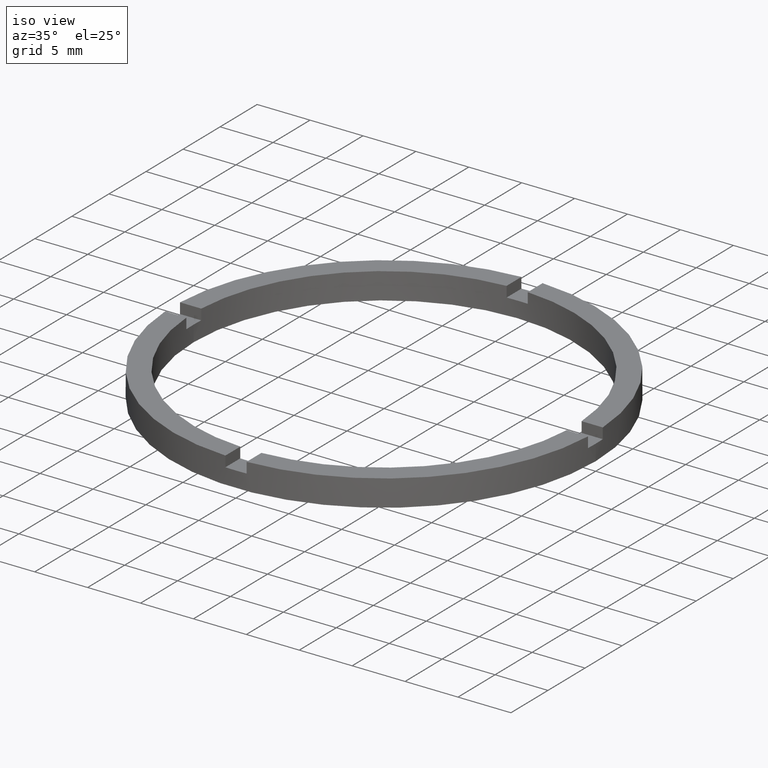
[diagram: clean part render]
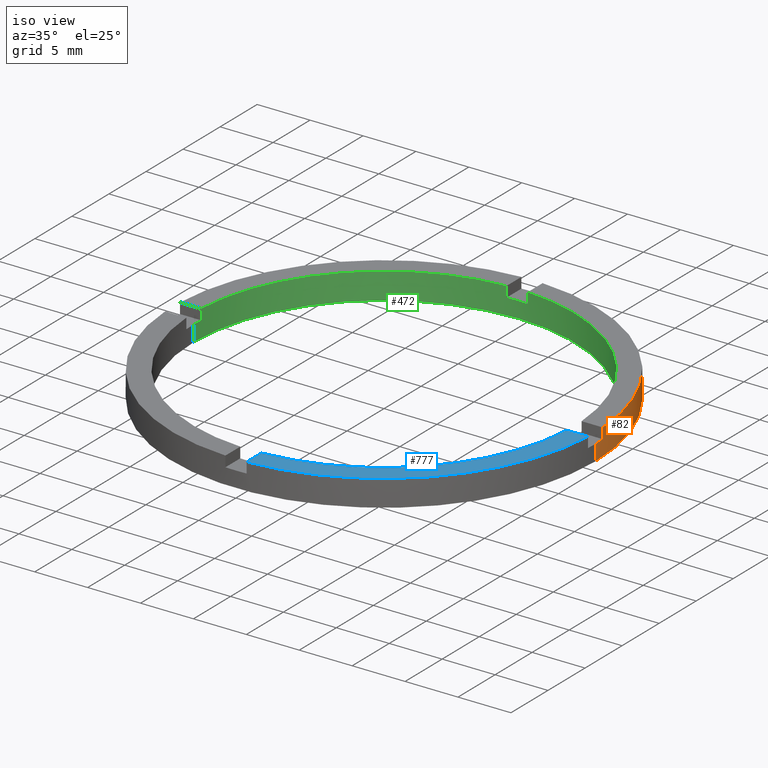
[diagram: same view with three faces highlighted in distinct colors, each labeled with its STEP entity id]
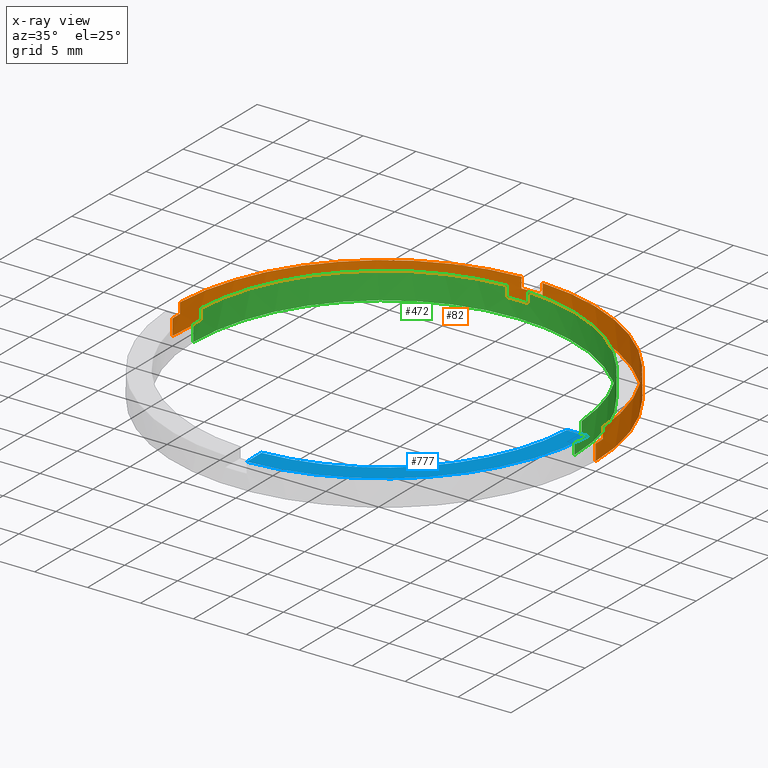
[diagram: x-ray of the same camera — body ghosted, the three highlighted faces saturated]
A machine part, iso view with three faces highlighted in distinct colors.
The next image is the same camera in x-ray (body ghosted, the three faces saturated) — at least one of them is partly hidden behind the body in this view.
Their STEP definitions:

[orange] entity #82 — the highlighted cylindrical surface (partial cylindrical patch) has radius 20 mm, axis along (-0, -0, -1).
#18 = VERTEX_POINT ( 'NONE', #668 ) ;
#19 = ORIENTED_EDGE ( 'NONE', *, *, #298, .F. ) ;
#30 = VERTEX_POINT ( 'NONE', #351 ) ;
#39 = CARTESIAN_POINT ( 'NONE',  ( 0.000000000000000000, 0.000000000000000000, 2.500000000000000000 ) ) ;
#44 = ORIENTED_EDGE ( 'NONE', *, *, #510, .F. ) ;
#50 = VERTEX_POINT ( 'NONE', #316 ) ;
#52 = CARTESIAN_POINT ( 'NONE',  ( 19.97498435543818829, 0.9999999999998430145, 1.500000000000000000 ) ) ;
#66 = CARTESIAN_POINT ( 'NONE',  ( 20.00000000000000000, 2.449293598294706513E-15, 1.500000000000000000 ) ) ;
#70 = CARTESIAN_POINT ( 'NONE',  ( 20.00000000000000000, 2.449293598294706513E-15, 2.500000000000000000 ) ) ;
#74 = DIRECTION ( 'NONE',  ( 0.000000000000000000, 0.000000000000000000, 1.000000000000000000 ) ) ;
#82 = ADVANCED_FACE ( 'NONE', ( #350 ), #356, .T. ) ;
#84 = AXIS2_PLACEMENT_3D ( 'NONE', #224, #247, #402 ) ;
#94 = AXIS2_PLACEMENT_3D ( 'NONE', #231, #589, #187 ) ;
#96 = CARTESIAN_POINT ( 'NONE',  ( -1.000000000000026867, 19.97498435543817763, 2.500000000000000000 ) ) ;
#107 = CARTESIAN_POINT ( 'NONE',  ( 19.97498435543818829, 0.9999999999998430145, 2.500000000000000000 ) ) ;
#124 = ORIENTED_EDGE ( 'NONE', *, *, #315, .F. ) ;
#131 = AXIS2_PLACEMENT_3D ( 'NONE', #780, #722, #194 ) ;
#134 = VECTOR ( 'NONE', #276, 1000.000000000000000 ) ;
#137 = LINE ( 'NONE', #773, #685 ) ;
#150 = CARTESIAN_POINT ( 'NONE',  ( 19.97498435543818829, 0.9999999999998430145, 2.500000000000000000 ) ) ;
#153 = LINE ( 'NONE', #672, #670 ) ;
#158 = LINE ( 'NONE', #548, #432 ) ;
#171 = DIRECTION ( 'NONE',  ( 0.000000000000000000, 0.000000000000000000, 1.000000000000000000 ) ) ;
#180 = DIRECTION ( 'NONE',  ( -0.000000000000000000, -0.000000000000000000, -1.000000000000000000 ) ) ;
#181 = CARTESIAN_POINT ( 'NONE',  ( -19.97498435543818118, 0.9999999999999742428, 2.500000000000000000 ) ) ;
#187 = DIRECTION ( 'NONE',  ( 1.000000000000000000, 0.000000000000000000, 0.000000000000000000 ) ) ;
#194 = DIRECTION ( 'NONE',  ( 1.000000000000000000, 0.000000000000000000, 0.000000000000000000 ) ) ;
#213 = ORIENTED_EDGE ( 'NONE', *, *, #246, .F. ) ;
#219 = CARTESIAN_POINT ( 'NONE',  ( -1.000000000000026867, 19.97498435543817763, 2.500000000000000000 ) ) ;
#224 = CARTESIAN_POINT ( 'NONE',  ( 0.000000000000000000, 0.000000000000000000, 1.500000000000000000 ) ) ;
#227 = VERTEX_POINT ( 'NONE', #181 ) ;
#231 = CARTESIAN_POINT ( 'NONE',  ( 0.000000000000000000, 0.000000000000000000, 1.500000000000000000 ) ) ;
#245 = DIRECTION ( 'NONE',  ( -0.000000000000000000, -0.000000000000000000, -1.000000000000000000 ) ) ;
#246 = EDGE_CURVE ( 'NONE', #742, #741, #624, .T. ) ;
#247 = DIRECTION ( 'NONE',  ( 0.000000000000000000, 0.000000000000000000, 1.000000000000000000 ) ) ;
#256 = EDGE_CURVE ( 'NONE', #755, #227, #372, .T. ) ;
#267 = AXIS2_PLACEMENT_3D ( 'NONE', #39, #557, #466 ) ;
#269 = ORIENTED_EDGE ( 'NONE', *, *, #454, .T. ) ;
#276 = DIRECTION ( 'NONE',  ( -0.000000000000000000, -0.000000000000000000, -1.000000000000000000 ) ) ;
#286 = DIRECTION ( 'NONE',  ( 1.000000000000000000, 0.000000000000000000, 0.000000000000000000 ) ) ;
#297 = VERTEX_POINT ( 'NONE', #107 ) ;
#298 = EDGE_CURVE ( 'NONE', #504, #50, #370, .T. ) ;
#308 = VERTEX_POINT ( 'NONE', #496 ) ;
#315 = EDGE_CURVE ( 'NONE', #18, #730, #380, .T. ) ;
#316 = CARTESIAN_POINT ( 'NONE',  ( -1.000000000000026867, 19.97498435543817763, 1.500000000000000000 ) ) ;
#336 = DIRECTION ( 'NONE',  ( -0.000000000000000000, -0.000000000000000000, -1.000000000000000000 ) ) ;
#350 = FACE_OUTER_BOUND ( 'NONE', #543, .T. ) ;
#351 = CARTESIAN_POINT ( 'NONE',  ( -20.00000000000000000, 0.000000000000000000, 0.000000000000000000 ) ) ;
#356 = CYLINDRICAL_SURFACE ( 'NONE', #580, 20.00000000000000000 ) ;
#369 = DIRECTION ( 'NONE',  ( -1.000000000000000000, 0.000000000000000000, 0.000000000000000000 ) ) ;
#370 = CIRCLE ( 'NONE', #94, 20.00000000000000000 ) ;
#372 = CIRCLE ( 'NONE', #390, 20.00000000000000000 ) ;
#380 = CIRCLE ( 'NONE', #84, 20.00000000000000000 ) ;
#386 = ORIENTED_EDGE ( 'NONE', *, *, #447, .F. ) ;
#390 = AXIS2_PLACEMENT_3D ( 'NONE', #533, #425, #529 ) ;
#402 = DIRECTION ( 'NONE',  ( 1.000000000000000000, 0.000000000000000000, 0.000000000000000000 ) ) ;
#408 = CIRCLE ( 'NONE', #267, 20.00000000000000000 ) ;
#411 = CARTESIAN_POINT ( 'NONE',  ( 0.000000000000000000, 0.000000000000000000, 1.500000000000000000 ) ) ;
#413 = LINE ( 'NONE', #219, #134 ) ;
#416 = VECTOR ( 'NONE', #245, 1000.000000000000000 ) ;
#425 = DIRECTION ( 'NONE',  ( 0.000000000000000000, 0.000000000000000000, 1.000000000000000000 ) ) ;
#432 = VECTOR ( 'NONE', #171, 1000.000000000000000 ) ;
#440 = LINE ( 'NONE', #150, #416 ) ;
#444 = EDGE_CURVE ( 'NONE', #457, #30, #664, .T. ) ;
#447 = EDGE_CURVE ( 'NONE', #297, #308, #408, .T. ) ;
#448 = LINE ( 'NONE', #70, #696 ) ;
#454 = EDGE_CURVE ( 'NONE', #504, #308, #153, .T. ) ;
#457 = VERTEX_POINT ( 'NONE', #513 ) ;
#466 = DIRECTION ( 'NONE',  ( 1.000000000000000000, 0.000000000000000000, 0.000000000000000000 ) ) ;
#477 = ORIENTED_EDGE ( 'NONE', *, *, #760, .T. ) ;
#492 = EDGE_CURVE ( 'NONE', #297, #741, #440, .T. ) ;
#496 = CARTESIAN_POINT ( 'NONE',  ( 0.9999999999999731326, 19.97498435543818118, 2.500000000000000000 ) ) ;
#504 = VERTEX_POINT ( 'NONE', #585 ) ;
#510 = EDGE_CURVE ( 'NONE', #730, #30, #137, .T. ) ;
#513 = CARTESIAN_POINT ( 'NONE',  ( 20.00000000000000000, 2.449293598294706513E-15, 0.000000000000000000 ) ) ;
#516 = EDGE_CURVE ( 'NONE', #755, #50, #413, .T. ) ;
#529 = DIRECTION ( 'NONE',  ( 1.000000000000000000, 0.000000000000000000, 0.000000000000000000 ) ) ;
#533 = CARTESIAN_POINT ( 'NONE',  ( 0.000000000000000000, 0.000000000000000000, 2.500000000000000000 ) ) ;
#543 = EDGE_LOOP ( 'NONE', ( #213, #477, #717, #44, #124, #558, #641, #732, #19, #269, #386, #544 ) ) ;
#544 = ORIENTED_EDGE ( 'NONE', *, *, #492, .T. ) ;
#548 = CARTESIAN_POINT ( 'NONE',  ( -19.97498435543818118, 0.9999999999999742428, 2.500000000000000000 ) ) ;
#557 = DIRECTION ( 'NONE',  ( 0.000000000000000000, 0.000000000000000000, 1.000000000000000000 ) ) ;
#558 = ORIENTED_EDGE ( 'NONE', *, *, #686, .T. ) ;
#580 = AXIS2_PLACEMENT_3D ( 'NONE', #676, #749, #369 ) ;
#585 = CARTESIAN_POINT ( 'NONE',  ( 0.9999999999999731326, 19.97498435543818118, 1.500000000000000000 ) ) ;
#586 = CARTESIAN_POINT ( 'NONE',  ( -20.00000000000000000, 0.000000000000000000, 1.500000000000000000 ) ) ;
#587 = DIRECTION ( 'NONE',  ( 0.000000000000000000, 0.000000000000000000, 1.000000000000000000 ) ) ;
#589 = DIRECTION ( 'NONE',  ( 0.000000000000000000, -0.000000000000000000, 1.000000000000000000 ) ) ;
#624 = CIRCLE ( 'NONE', #783, 20.00000000000000000 ) ;
#641 = ORIENTED_EDGE ( 'NONE', *, *, #256, .F. ) ;
#664 = CIRCLE ( 'NONE', #131, 20.00000000000000000 ) ;
#668 = CARTESIAN_POINT ( 'NONE',  ( -19.97498435543818118, 0.9999999999999742428, 1.500000000000000000 ) ) ;
#670 = VECTOR ( 'NONE', #74, 1000.000000000000000 ) ;
#672 = CARTESIAN_POINT ( 'NONE',  ( 0.9999999999999731326, 19.97498435543818118, 2.500000000000000000 ) ) ;
#676 = CARTESIAN_POINT ( 'NONE',  ( 0.000000000000000000, 0.000000000000000000, 2.500000000000000000 ) ) ;
#685 = VECTOR ( 'NONE', #336, 1000.000000000000000 ) ;
#686 = EDGE_CURVE ( 'NONE', #18, #227, #158, .T. ) ;
#696 = VECTOR ( 'NONE', #180, 1000.000000000000000 ) ;
#717 = ORIENTED_EDGE ( 'NONE', *, *, #444, .T. ) ;
#722 = DIRECTION ( 'NONE',  ( 0.000000000000000000, 0.000000000000000000, 1.000000000000000000 ) ) ;
#730 = VERTEX_POINT ( 'NONE', #586 ) ;
#732 = ORIENTED_EDGE ( 'NONE', *, *, #516, .T. ) ;
#741 = VERTEX_POINT ( 'NONE', #52 ) ;
#742 = VERTEX_POINT ( 'NONE', #66 ) ;
#749 = DIRECTION ( 'NONE',  ( -0.000000000000000000, -0.000000000000000000, -1.000000000000000000 ) ) ;
#755 = VERTEX_POINT ( 'NONE', #96 ) ;
#760 = EDGE_CURVE ( 'NONE', #742, #457, #448, .T. ) ;
#773 = CARTESIAN_POINT ( 'NONE',  ( -20.00000000000000000, 0.000000000000000000, 2.500000000000000000 ) ) ;
#780 = CARTESIAN_POINT ( 'NONE',  ( 0.000000000000000000, 0.000000000000000000, 0.000000000000000000 ) ) ;
#783 = AXIS2_PLACEMENT_3D ( 'NONE', #411, #587, #286 ) ;

[blue] entity #777 — the highlighted planar face has unit normal (0, 0, 1).
#9 = DIRECTION ( 'NONE',  ( -1.301042606982605321E-16, 1.000000000000000000, -0.000000000000000000 ) ) ;
#37 = FACE_OUTER_BOUND ( 'NONE', #307, .T. ) ;
#56 = CARTESIAN_POINT ( 'NONE',  ( 0.9999999999998382405, -10.00000000000018119, 2.500000000000000000 ) ) ;
#80 = CARTESIAN_POINT ( 'NONE',  ( 0.000000000000000000, 0.000000000000000000, 2.500000000000000000 ) ) ;
#100 = CARTESIAN_POINT ( 'NONE',  ( 0.9999999999998395728, -19.97498435543818829, 2.500000000000000000 ) ) ;
#110 = CARTESIAN_POINT ( 'NONE',  ( 0.9999999999998393507, -17.97220075561143560, 2.500000000000000000 ) ) ;
#111 = DIRECTION ( 'NONE',  ( 1.000000000000000000, 6.505213034913025371E-17, 0.000000000000000000 ) ) ;
#116 = LINE ( 'NONE', #56, #358 ) ;
#175 = VERTEX_POINT ( 'NONE', #110 ) ;
#196 = VERTEX_POINT ( 'NONE', #100 ) ;
#225 = EDGE_CURVE ( 'NONE', #196, #175, #116, .T. ) ;
#242 = DIRECTION ( 'NONE',  ( 0.000000000000000000, 0.000000000000000000, 1.000000000000000000 ) ) ;
#264 = DIRECTION ( 'NONE',  ( 0.000000000000000000, 0.000000000000000000, 1.000000000000000000 ) ) ;
#307 = EDGE_LOOP ( 'NONE', ( #546, #555, #611, #363 ) ) ;
#319 = PLANE ( 'NONE',  #559 ) ;
#327 = EDGE_CURVE ( 'NONE', #175, #431, #632, .T. ) ;
#342 = AXIS2_PLACEMENT_3D ( 'NONE', #729, #242, #737 ) ;
#358 = VECTOR ( 'NONE', #9, 1000.000000000000000 ) ;
#363 = ORIENTED_EDGE ( 'NONE', *, *, #572, .T. ) ;
#366 = EDGE_CURVE ( 'NONE', #431, #707, #661, .T. ) ;
#407 = CARTESIAN_POINT ( 'NONE',  ( 9.999999999999994671, -1.000000000000157652, 2.500000000000000000 ) ) ;
#431 = VERTEX_POINT ( 'NONE', #647 ) ;
#534 = CARTESIAN_POINT ( 'NONE',  ( 19.97498435543817408, -1.000000000000156986, 2.500000000000000000 ) ) ;
#546 = ORIENTED_EDGE ( 'NONE', *, *, #366, .F. ) ;
#555 = ORIENTED_EDGE ( 'NONE', *, *, #327, .F. ) ;
#556 = DIRECTION ( 'NONE',  ( 0.000000000000000000, 0.000000000000000000, 1.000000000000000000 ) ) ;
#559 = AXIS2_PLACEMENT_3D ( 'NONE', #716, #556, #601 ) ;
#572 = EDGE_CURVE ( 'NONE', #196, #707, #667, .T. ) ;
#601 = DIRECTION ( 'NONE',  ( 1.000000000000000000, 0.000000000000000000, -0.000000000000000000 ) ) ;
#611 = ORIENTED_EDGE ( 'NONE', *, *, #225, .F. ) ;
#632 = CIRCLE ( 'NONE', #342, 18.00000000000000000 ) ;
#647 = CARTESIAN_POINT ( 'NONE',  ( 17.97220075561141783, -1.000000000000157208, 2.500000000000000000 ) ) ;
#661 = LINE ( 'NONE', #407, #666 ) ;
#666 = VECTOR ( 'NONE', #111, 1000.000000000000000 ) ;
#667 = CIRCLE ( 'NONE', #698, 20.00000000000000000 ) ;
#698 = AXIS2_PLACEMENT_3D ( 'NONE', #80, #264, #702 ) ;
#702 = DIRECTION ( 'NONE',  ( 1.000000000000000000, 0.000000000000000000, 0.000000000000000000 ) ) ;
#707 = VERTEX_POINT ( 'NONE', #534 ) ;
#716 = CARTESIAN_POINT ( 'NONE',  ( 0.000000000000000000, 0.000000000000000000, 2.500000000000000000 ) ) ;
#729 = CARTESIAN_POINT ( 'NONE',  ( 0.000000000000000000, 0.000000000000000000, 2.500000000000000000 ) ) ;
#737 = DIRECTION ( 'NONE',  ( 1.000000000000000000, 0.000000000000000000, 0.000000000000000000 ) ) ;
#777 = ADVANCED_FACE ( 'NONE', ( #37 ), #319, .T. ) ;

[green] entity #472 — the highlighted cylindrical surface (partial cylindrical patch) has radius 18 mm, axis along (-0, -0, -1).
#1 = CARTESIAN_POINT ( 'NONE',  ( 0.000000000000000000, 0.000000000000000000, 2.500000000000000000 ) ) ;
#4 = CARTESIAN_POINT ( 'NONE',  ( -1.000000000000026867, 17.97220075561142494, 2.500000000000000000 ) ) ;
#10 = EDGE_CURVE ( 'NONE', #456, #740, #348, .T. ) ;
#14 = ORIENTED_EDGE ( 'NONE', *, *, #460, .F. ) ;
#20 = ORIENTED_EDGE ( 'NONE', *, *, #10, .T. ) ;
#26 = DIRECTION ( 'NONE',  ( -0.000000000000000000, -0.000000000000000000, -1.000000000000000000 ) ) ;
#28 = VERTEX_POINT ( 'NONE', #368 ) ;
#34 = ORIENTED_EDGE ( 'NONE', *, *, #91, .F. ) ;
#38 = ORIENTED_EDGE ( 'NONE', *, *, #106, .T. ) ;
#53 = EDGE_CURVE ( 'NONE', #157, #456, #373, .T. ) ;
#86 = VECTOR ( 'NONE', #323, 1000.000000000000000 ) ;
#91 = EDGE_CURVE ( 'NONE', #223, #740, #622, .T. ) ;
#103 = CARTESIAN_POINT ( 'NONE',  ( 0.000000000000000000, 0.000000000000000000, 2.500000000000000000 ) ) ;
#104 = AXIS2_PLACEMENT_3D ( 'NONE', #439, #489, #598 ) ;
#106 = EDGE_CURVE ( 'NONE', #704, #490, #379, .T. ) ;
#112 = CIRCLE ( 'NONE', #204, 18.00000000000000000 ) ;
#126 = CARTESIAN_POINT ( 'NONE',  ( 0.000000000000000000, 0.000000000000000000, 0.000000000000000000 ) ) ;
#135 = VECTOR ( 'NONE', #333, 1000.000000000000000 ) ;
#140 = VECTOR ( 'NONE', #222, 1000.000000000000000 ) ;
#147 = LINE ( 'NONE', #663, #161 ) ;
#154 = FACE_OUTER_BOUND ( 'NONE', #553, .T. ) ;
#157 = VERTEX_POINT ( 'NONE', #229 ) ;
#161 = VECTOR ( 'NONE', #268, 1000.000000000000000 ) ;
#167 = VECTOR ( 'NONE', #648, 1000.000000000000000 ) ;
#172 = VERTEX_POINT ( 'NONE', #481 ) ;
#173 = CIRCLE ( 'NONE', #618, 18.00000000000000000 ) ;
#188 = VERTEX_POINT ( 'NONE', #476 ) ;
#192 = CARTESIAN_POINT ( 'NONE',  ( -18.00000000000000000, 0.000000000000000000, 0.000000000000000000 ) ) ;
#198 = ORIENTED_EDGE ( 'NONE', *, *, #592, .F. ) ;
#202 = ORIENTED_EDGE ( 'NONE', *, *, #747, .T. ) ;
#204 = AXIS2_PLACEMENT_3D ( 'NONE', #593, #657, #733 ) ;
#211 = DIRECTION ( 'NONE',  ( -1.000000000000000000, 0.000000000000000000, 0.000000000000000000 ) ) ;
#216 = CARTESIAN_POINT ( 'NONE',  ( 17.97220075561143560, 0.9999999999998427924, 2.500000000000000000 ) ) ;
#222 = DIRECTION ( 'NONE',  ( 0.000000000000000000, 0.000000000000000000, 1.000000000000000000 ) ) ;
#223 = VERTEX_POINT ( 'NONE', #603 ) ;
#229 = CARTESIAN_POINT ( 'NONE',  ( -17.97220075561142849, 0.9999999999999746869, 1.500000000000000000 ) ) ;
#240 = CARTESIAN_POINT ( 'NONE',  ( -18.00000000000000000, 0.000000000000000000, 2.500000000000000000 ) ) ;
#249 = DIRECTION ( 'NONE',  ( 0.000000000000000000, 0.000000000000000000, 1.000000000000000000 ) ) ;
#263 = AXIS2_PLACEMENT_3D ( 'NONE', #103, #731, #501 ) ;
#268 = DIRECTION ( 'NONE',  ( -0.000000000000000000, -0.000000000000000000, -1.000000000000000000 ) ) ;
#304 = ORIENTED_EDGE ( 'NONE', *, *, #352, .F. ) ;
#311 = ORIENTED_EDGE ( 'NONE', *, *, #771, .F. ) ;
#313 = EDGE_CURVE ( 'NONE', #172, #535, #112, .T. ) ;
#323 = DIRECTION ( 'NONE',  ( -0.000000000000000000, -0.000000000000000000, -1.000000000000000000 ) ) ;
#333 = DIRECTION ( 'NONE',  ( -0.000000000000000000, -0.000000000000000000, -1.000000000000000000 ) ) ;
#339 = EDGE_CURVE ( 'NONE', #704, #713, #438, .T. ) ;
#348 = LINE ( 'NONE', #240, #86 ) ;
#352 = EDGE_CURVE ( 'NONE', #172, #223, #436, .T. ) ;
#368 = CARTESIAN_POINT ( 'NONE',  ( -17.97220075561142849, 0.9999999999999746869, 2.500000000000000000 ) ) ;
#373 = CIRCLE ( 'NONE', #104, 18.00000000000000000 ) ;
#379 = CIRCLE ( 'NONE', #769, 18.00000000000000000 ) ;
#406 = VECTOR ( 'NONE', #584, 1000.000000000000000 ) ;
#417 = DIRECTION ( 'NONE',  ( 1.000000000000000000, 0.000000000000000000, 0.000000000000000000 ) ) ;
#429 = CIRCLE ( 'NONE', #263, 18.00000000000000000 ) ;
#436 = LINE ( 'NONE', #634, #406 ) ;
#438 = LINE ( 'NONE', #595, #140 ) ;
#439 = CARTESIAN_POINT ( 'NONE',  ( 0.000000000000000000, 0.000000000000000000, 1.500000000000000000 ) ) ;
#456 = VERTEX_POINT ( 'NONE', #549 ) ;
#460 = EDGE_CURVE ( 'NONE', #727, #490, #147, .T. ) ;
#468 = ORIENTED_EDGE ( 'NONE', *, *, #313, .T. ) ;
#472 = ADVANCED_FACE ( 'NONE', ( #154 ), #675, .F. ) ;
#476 = CARTESIAN_POINT ( 'NONE',  ( 17.97220075561143560, 0.9999999999998427924, 2.500000000000000000 ) ) ;
#481 = CARTESIAN_POINT ( 'NONE',  ( 18.00000000000000000, 2.204364238465235428E-15, 1.500000000000000000 ) ) ;
#485 = CARTESIAN_POINT ( 'NONE',  ( 0.9999999999999731326, 17.97220075561142849, 2.500000000000000000 ) ) ;
#489 = DIRECTION ( 'NONE',  ( 0.000000000000000000, 0.000000000000000000, 1.000000000000000000 ) ) ;
#490 = VERTEX_POINT ( 'NONE', #521 ) ;
#501 = DIRECTION ( 'NONE',  ( 1.000000000000000000, 0.000000000000000000, 0.000000000000000000 ) ) ;
#521 = CARTESIAN_POINT ( 'NONE',  ( -1.000000000000026867, 17.97220075561142494, 1.500000000000000000 ) ) ;
#535 = VERTEX_POINT ( 'NONE', #719 ) ;
#549 = CARTESIAN_POINT ( 'NONE',  ( -18.00000000000000000, 0.000000000000000000, 1.500000000000000000 ) ) ;
#553 = EDGE_LOOP ( 'NONE', ( #304, #468, #198, #571, #574, #38, #14, #202, #311, #577, #20, #34 ) ) ;
#554 = DIRECTION ( 'NONE',  ( 1.000000000000000000, 0.000000000000000000, 0.000000000000000000 ) ) ;
#571 = ORIENTED_EDGE ( 'NONE', *, *, #665, .T. ) ;
#574 = ORIENTED_EDGE ( 'NONE', *, *, #339, .F. ) ;
#577 = ORIENTED_EDGE ( 'NONE', *, *, #53, .T. ) ;
#584 = DIRECTION ( 'NONE',  ( -0.000000000000000000, -0.000000000000000000, -1.000000000000000000 ) ) ;
#592 = EDGE_CURVE ( 'NONE', #188, #535, #656, .T. ) ;
#593 = CARTESIAN_POINT ( 'NONE',  ( 0.000000000000000000, 0.000000000000000000, 1.500000000000000000 ) ) ;
#595 = CARTESIAN_POINT ( 'NONE',  ( 0.9999999999999731326, 17.97220075561142849, 2.500000000000000000 ) ) ;
#598 = DIRECTION ( 'NONE',  ( 1.000000000000000000, 0.000000000000000000, 0.000000000000000000 ) ) ;
#599 = CARTESIAN_POINT ( 'NONE',  ( 0.000000000000000000, 0.000000000000000000, 1.500000000000000000 ) ) ;
#603 = CARTESIAN_POINT ( 'NONE',  ( 18.00000000000000000, 2.204364238465235428E-15, 0.000000000000000000 ) ) ;
#618 = AXIS2_PLACEMENT_3D ( 'NONE', #1, #655, #417 ) ;
#622 = CIRCLE ( 'NONE', #684, 18.00000000000000000 ) ;
#634 = CARTESIAN_POINT ( 'NONE',  ( 18.00000000000000000, 2.204364238465235428E-15, 2.500000000000000000 ) ) ;
#648 = DIRECTION ( 'NONE',  ( 0.000000000000000000, 0.000000000000000000, 1.000000000000000000 ) ) ;
#655 = DIRECTION ( 'NONE',  ( 0.000000000000000000, 0.000000000000000000, 1.000000000000000000 ) ) ;
#656 = LINE ( 'NONE', #216, #135 ) ;
#657 = DIRECTION ( 'NONE',  ( 0.000000000000000000, 0.000000000000000000, 1.000000000000000000 ) ) ;
#663 = CARTESIAN_POINT ( 'NONE',  ( -1.000000000000026867, 17.97220075561142494, 2.500000000000000000 ) ) ;
#665 = EDGE_CURVE ( 'NONE', #188, #713, #429, .T. ) ;
#669 = DIRECTION ( 'NONE',  ( 1.000000000000000000, 0.000000000000000000, 0.000000000000000000 ) ) ;
#675 = CYLINDRICAL_SURFACE ( 'NONE', #750, 18.00000000000000000 ) ;
#684 = AXIS2_PLACEMENT_3D ( 'NONE', #126, #249, #554 ) ;
#688 = CARTESIAN_POINT ( 'NONE',  ( 0.000000000000000000, 0.000000000000000000, 2.500000000000000000 ) ) ;
#689 = LINE ( 'NONE', #739, #167 ) ;
#704 = VERTEX_POINT ( 'NONE', #781 ) ;
#713 = VERTEX_POINT ( 'NONE', #485 ) ;
#719 = CARTESIAN_POINT ( 'NONE',  ( 17.97220075561143560, 0.9999999999998427924, 1.500000000000000000 ) ) ;
#727 = VERTEX_POINT ( 'NONE', #4 ) ;
#731 = DIRECTION ( 'NONE',  ( 0.000000000000000000, 0.000000000000000000, 1.000000000000000000 ) ) ;
#733 = DIRECTION ( 'NONE',  ( 1.000000000000000000, 0.000000000000000000, 0.000000000000000000 ) ) ;
#739 = CARTESIAN_POINT ( 'NONE',  ( -17.97220075561142849, 0.9999999999999746869, 2.500000000000000000 ) ) ;
#740 = VERTEX_POINT ( 'NONE', #192 ) ;
#743 = DIRECTION ( 'NONE',  ( 0.000000000000000000, -0.000000000000000000, 1.000000000000000000 ) ) ;
#747 = EDGE_CURVE ( 'NONE', #727, #28, #173, .T. ) ;
#750 = AXIS2_PLACEMENT_3D ( 'NONE', #688, #26, #211 ) ;
#769 = AXIS2_PLACEMENT_3D ( 'NONE', #599, #743, #669 ) ;
#771 = EDGE_CURVE ( 'NONE', #157, #28, #689, .T. ) ;
#781 = CARTESIAN_POINT ( 'NONE',  ( 0.9999999999999731326, 17.97220075561142849, 1.500000000000000000 ) ) ;